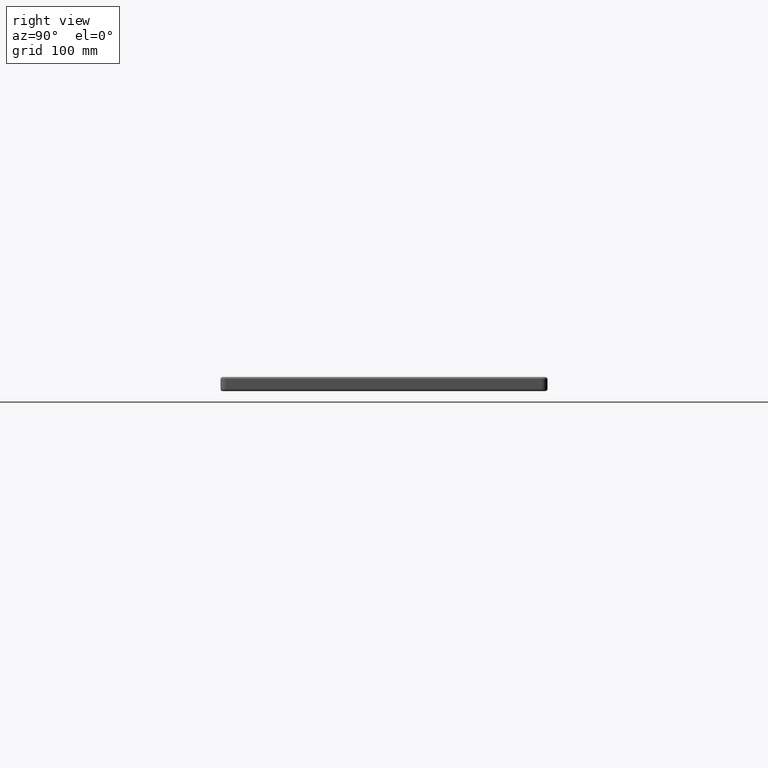
[diagram: clean part render]
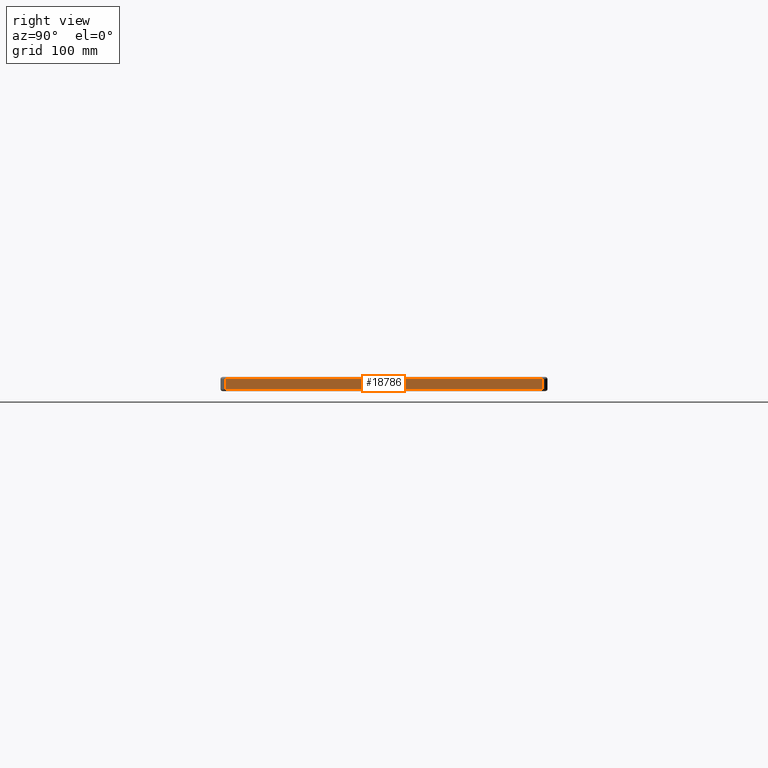
[diagram: same view with one face highlighted and labeled with its STEP entity id]
A machine part, right view. The second image highlights one B-rep face of the part: STEP entity #18786.
In plain terms, the highlighted planar face has unit normal (1, 0, 0).
Its self-contained STEP definition (entity closure, byte-faithful):
#1010 = VECTOR ( 'NONE', #7758, 1000.000000000000000 ) ;
#1141 = AXIS2_PLACEMENT_3D ( 'NONE', #19016, #18935, #19084 ) ;
#1330 = ORIENTED_EDGE ( 'NONE', *, *, #9779, .T. ) ;
#1991 = ORIENTED_EDGE ( 'NONE', *, *, #3148, .T. ) ;
#2874 = VERTEX_POINT ( 'NONE', #7655 ) ;
#2876 = VERTEX_POINT ( 'NONE', #16984 ) ;
#3148 = EDGE_CURVE ( 'NONE', #4977, #2874, #14020, .T. ) ;
#4054 = LINE ( 'NONE', #17820, #12133 ) ;
#4977 = VERTEX_POINT ( 'NONE', #8816 ) ;
#7628 = DIRECTION ( 'NONE',  ( -0.0000000000000000000, -1.000000000000000000, 0.0000000000000000000 ) ) ;
#7655 = CARTESIAN_POINT ( 'NONE',  ( 600.0000000000000000, 294.9999999999999400, -11.00000000000000000 ) ) ;
#7740 = VECTOR ( 'NONE', #12579, 1000.000000000000000 ) ;
#7758 = DIRECTION ( 'NONE',  ( -0.0000000000000000000, 1.000000000000000000, 0.0000000000000000000 ) ) ;
#8814 = CARTESIAN_POINT ( 'NONE',  ( 600.0000000000000000, 4.999999999999999100, -2.000000000000000000 ) ) ;
#8816 = CARTESIAN_POINT ( 'NONE',  ( 600.0000000000000000, 4.999999999999999100, -11.00000000000000000 ) ) ;
#9779 = EDGE_CURVE ( 'NONE', #2876, #19623, #20056, .T. ) ;
#10906 = LINE ( 'NONE', #11214, #7740 ) ;
#11214 = CARTESIAN_POINT ( 'NONE',  ( 600.0000000000000000, 4.999999999999999100, -13.00000000000000000 ) ) ;
#11330 = ORIENTED_EDGE ( 'NONE', *, *, #18777, .T. ) ;
#12133 = VECTOR ( 'NONE', #17676, 1000.000000000000000 ) ;
#12579 = DIRECTION ( 'NONE',  ( 0.0000000000000000000, -0.0000000000000000000, -1.000000000000000000 ) ) ;
#13774 = EDGE_LOOP ( 'NONE', ( #11330, #1991, #15184, #1330 ) ) ;
#14020 = LINE ( 'NONE', #16946, #1010 ) ;
#14154 = PLANE ( 'NONE',  #1141 ) ;
#15184 = ORIENTED_EDGE ( 'NONE', *, *, #18905, .T. ) ;
#15324 = CARTESIAN_POINT ( 'NONE',  ( 600.0000000000000000, 5.000000000000004400, -2.000000000000000000 ) ) ;
#16946 = CARTESIAN_POINT ( 'NONE',  ( 600.0000000000000000, 0.0000000000000000000, -11.00000000000000000 ) ) ;
#16984 = CARTESIAN_POINT ( 'NONE',  ( 600.0000000000000000, 294.9999999999999400, -2.000000000000000000 ) ) ;
#17676 = DIRECTION ( 'NONE',  ( 0.0000000000000000000, 0.0000000000000000000, 1.000000000000000000 ) ) ;
#17820 = CARTESIAN_POINT ( 'NONE',  ( 600.0000000000000000, 294.9999999999999400, -13.00000000000000000 ) ) ;
#18312 = FACE_OUTER_BOUND ( 'NONE', #13774, .T. ) ;
#18777 = EDGE_CURVE ( 'NONE', #19623, #4977, #10906, .T. ) ;
#18786 = ADVANCED_FACE ( 'NONE', ( #18312 ), #14154, .T. ) ;
#18905 = EDGE_CURVE ( 'NONE', #2874, #2876, #4054, .T. ) ;
#18935 = DIRECTION ( 'NONE',  ( 1.000000000000000000, 0.0000000000000000000, 0.0000000000000000000 ) ) ;
#19016 = CARTESIAN_POINT ( 'NONE',  ( 600.0000000000000000, 0.0000000000000000000, -13.00000000000000000 ) ) ;
#19084 = DIRECTION ( 'NONE',  ( 0.0000000000000000000, 0.0000000000000000000, -1.000000000000000000 ) ) ;
#19623 = VERTEX_POINT ( 'NONE', #8814 ) ;
#19835 = VECTOR ( 'NONE', #7628, 1000.000000000000000 ) ;
#20056 = LINE ( 'NONE', #15324, #19835 ) ;